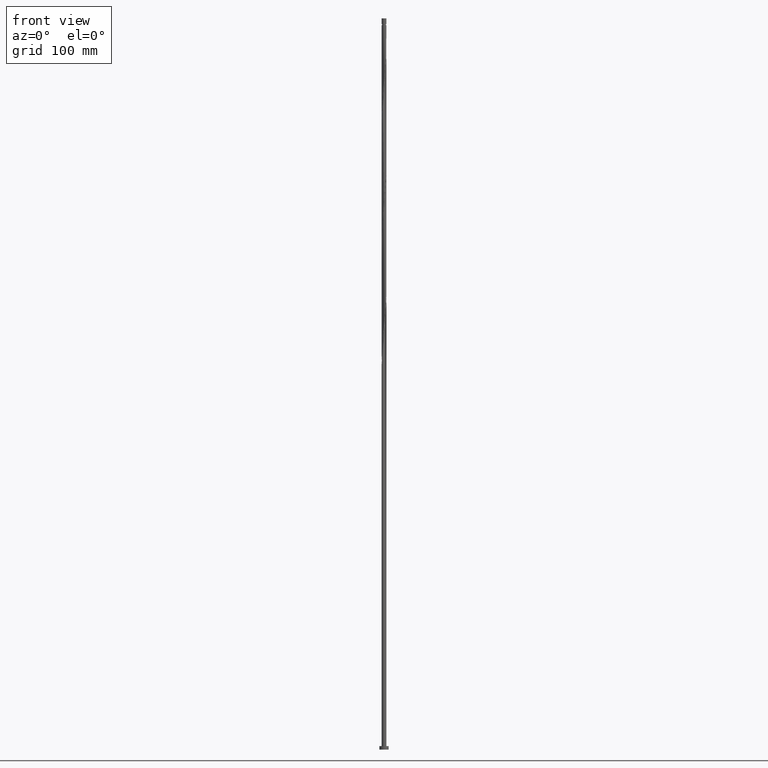
[diagram: clean part render]
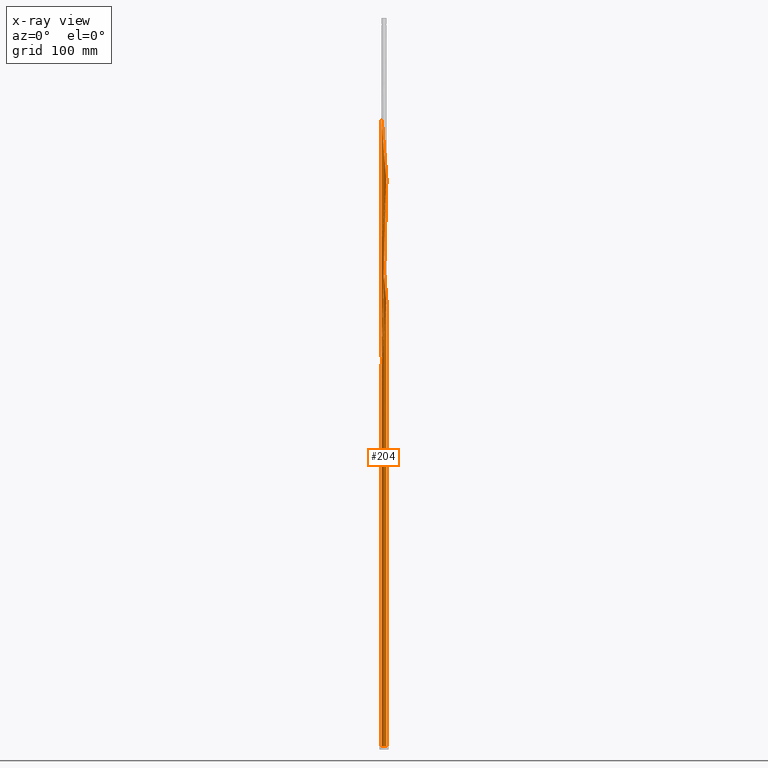
[diagram: x-ray — body ghosted, one internal face saturated and labeled with its STEP entity id]
A machine part, front view, then the same camera in x-ray: the body is ghosted and one INTERNAL B-rep face — a face not visible from any outside direction — is saturated and labeled: STEP entity #204.
In plain terms, the highlighted cylindrical surface (bore or boss wall) has radius 2 mm, axis along (-0, -0, -1).
Its self-contained STEP definition (entity closure, byte-faithful):
#6 = CARTESIAN_POINT ( 'NONE',  ( -1.723938978256571275, 1.030718489495153989, 428.0868770351694366 ) ) ;
#8 = CARTESIAN_POINT ( 'NONE',  ( 0.000000000000000000, 0.000000000000000000, 630.0000000000000000 ) ) ;
#14 = CARTESIAN_POINT ( 'NONE',  ( -1.370189186785119473, 1.456908230609307742, 528.4545240939930864 ) ) ;
#16 = CYLINDRICAL_SURFACE ( 'NONE', #1352, 2.000000000000000000 ) ;
#25 = DIRECTION ( 'NONE',  ( 0.000000000000000000, -0.000000000000000000, -1.000000000000000000 ) ) ;
#35 = DIRECTION ( 'NONE',  ( 0.000000000000000000, 0.000000000000000000, 1.000000000000000000 ) ) ;
#48 = CARTESIAN_POINT ( 'NONE',  ( -1.803959322414344868, 0.8635570410079396186, 534.6309946822282200 ) ) ;
#85 = CARTESIAN_POINT ( 'NONE',  ( 0.03106929915922246321, -1.999758660101204066, 358.6015829175225349 ) ) ;
#87 = CARTESIAN_POINT ( 'NONE',  ( -1.776261765769619805, 0.9191812331988676865, 330.8074652704636378 ) ) ;
#91 = CARTESIAN_POINT ( 'NONE',  ( -1.931921676749613015, 0.5173766856990898999, 327.7192299763459573 ) ) ;
#94 = CARTESIAN_POINT ( 'NONE',  ( 1.185386647468093635, 1.621482254403000089, 400.2927593881106532 ) ) ;
#101 = CARTESIAN_POINT ( 'NONE',  ( -0.3979949748426540035, 1.960000000000001297, 414.1898182116401017 ) ) ;
#108 = CARTESIAN_POINT ( 'NONE',  ( 1.691087081144169835, 1.083776125095387455, 394.1162887998754059 ) ) ;
#116 = CARTESIAN_POINT ( 'NONE',  ( 1.185386647468093635, 1.621482254403000089, 505.2927593881105963 ) ) ;
#120 = CARTESIAN_POINT ( 'NONE',  ( -1.861436450395071995, 0.7545863413023488064, 332.3515829175224781 ) ) ;
#123 = CARTESIAN_POINT ( 'NONE',  ( -2.000000000000002220, -4.855091616077246835E-16, 332.0916094369459870 ) ) ;
#128 = CARTESIAN_POINT ( 'NONE',  ( -1.776261765769622469, -0.9191812331988689078, 445.0721711528166793 ) ) ;
#140 = CARTESIAN_POINT ( 'NONE',  ( -1.235186757896836962, 1.583874956698217984, 421.9104064469341324 ) ) ;
#149 = CARTESIAN_POINT ( 'NONE',  ( 1.979863686927107347, -0.3383577788774545514, 486.7633476234047407 ) ) ;
#156 = CIRCLE ( 'NONE', #1319, 2.000000000000000000 ) ;
#159 = CARTESIAN_POINT ( 'NONE',  ( 1.988361328941638417, 0.2154512138964417012, 491.3957005645812046 ) ) ;
#167 =( BOUNDED_CURVE ( )  B_SPLINE_CURVE ( 2, ( #1535, #572, #736, #1518, #2031, #120, #87, #1229, #2021, #1387, #1055, #1361, #1696, #1189, #1024, #744, #238, #757, #589, #729, #413 ),
 .UNSPECIFIED., .F., .T. ) 
 B_SPLINE_CURVE_WITH_KNOTS ( ( 3, 2, 2, 2, 2, 2, 2, 2, 2, 2, 3 ),
 ( 0.9295293573162904943, 0.9338235294117647189, 0.9411764705882352811, 0.9485294117647058432, 0.9558823529411765163, 0.9632352941176470784, 0.9705882352941176405, 0.9779411764705882026, 0.9852941176470588758, 0.9926470588235294379, 1.000000000000000000 ),
 .UNSPECIFIED. ) 
 CURVE ( )  GEOMETRIC_REPRESENTATION_ITEM ( )  RATIONAL_B_SPLINE_CURVE ( ( 0.9072066346054001862, 0.9068261157891672752, 0.9090909090910387347, 0.9052128875410696551, 0.9090909090910387347, 0.9052128875410696551, 0.9090909090910387347, 0.9052128875410696551, 0.9090909090910387347, 0.9052128875410696551, 0.9090909090910387347, 0.9052128875410696551, 0.9090909090910387347, 0.9052128875410696551, 0.9090909090910387347, 0.9052128875410696551, 0.9090909090910387347, 0.9052128875410696551, 0.9090909090910387347, 0.9052128875410696551, 0.9090909090910387347 ) ) 
 REPRESENTATION_ITEM ( '' )  );
#178 = CARTESIAN_POINT ( 'NONE',  ( 0.000000000000000000, 0.000000000000000000, 3.000000000000000000 ) ) ;
#204 = ADVANCED_FACE ( 'NONE', ( #1298 ), #16, .T. ) ;
#236 = CARTESIAN_POINT ( 'NONE',  ( 1.979863686927107347, -0.3383577788774545514, 381.7633476234047407 ) ) ;
#237 = ORIENTED_EDGE ( 'NONE', *, *, #1810, .F. ) ;
#238 = CARTESIAN_POINT ( 'NONE',  ( -0.3369144042435588959, 1.971417937478810334, 315.3662887998754059 ) ) ;
#246 = CARTESIAN_POINT ( 'NONE',  ( 1.968396833874723084, 0.3997000246828213976, 387.9398182116400449 ) ) ;
#253 = DIRECTION ( 'NONE',  ( -0.000000000000000000, -0.000000000000000000, -1.000000000000000000 ) ) ;
#262 = CARTESIAN_POINT ( 'NONE',  ( -1.463149769580297743, -1.376059212794494613, 344.7045240939931432 ) ) ;
#273 = CARTESIAN_POINT ( 'NONE',  ( 1.370189186785119695, -1.456908230609307520, 370.9545240939930295 ) ) ;
#277 = ORIENTED_EDGE ( 'NONE', *, *, #1840, .T. ) ;
#288 = CARTESIAN_POINT ( 'NONE',  ( 1.691087081144169835, 1.083776125095387455, 499.1162887998752922 ) ) ;
#297 = CARTESIAN_POINT ( 'NONE',  ( 0.03106929915922246321, -1.999758660101204066, 463.6015829175224781 ) ) ;
#299 = ORIENTED_EDGE ( 'NONE', *, *, #1124, .F. ) ;
#308 = CARTESIAN_POINT ( 'NONE',  ( 1.803959322414344868, -0.8635570410079397297, 482.1309946822282200 ) ) ;
#323 = CARTESIAN_POINT ( 'NONE',  ( 1.931921676749613015, -0.5173766856990891227, 485.2192299763460142 ) ) ;
#336 = CARTESIAN_POINT ( 'NONE',  ( -1.463149769580297743, -1.376059212794494613, 449.7045240939930864 ) ) ;
#352 = DIRECTION ( 'NONE',  ( 1.000000000000000000, 0.000000000000000000, 0.000000000000000000 ) ) ;
#372 = CARTESIAN_POINT ( 'NONE',  ( -1.723938978256571275, 1.030718489495153989, 533.0868770351694366 ) ) ;
#388 =( BOUNDED_CURVE ( )  B_SPLINE_CURVE ( 2, ( #427, #569, #556, #1505, #1177, #2025, #587, #1042, #1846, #262, #1861, #1022, #1531, #886, #1702, #734, #1673, #1366, #85, #1339, #1053, #1202, #710, #1827, #1375, #578, #273, #1852, #1693, #893, #876, #1211, #1686, #236, #437, #866, #716, #246, #1060, #2019, #1349, #108, #1196, #1996, #740, #94, #903, #1185, #408, #1032, #727, #1358, #2007, #1516, #101, #1713, #783, #792, #944, #140, #1562, #1888, #1068, #6, #1744, #915, #1898, #645, #1078, #469, #1542, #1756, #934, #1733, #128, #1911, #1573, #336, #1405, #1425, #1872, #1394, #1554, #1087, #1724, #624, #297, #1385, #765, #1265, #775, #2067, #2046, #2038, #924, #602, #488, #634, #308, #1244, #323, #149, #1224, #1417, #159, #1111, #1254, #2056, #445, #288, #957, #480, #1100, #116, #613, #752, #1234, #1881, #455, #1309, #1461, #685, #1296, #801, #1133, #1162, #1793, #1785, #14, #653, #1808, #372, #48, #1451, #502, #1156, #1775, #998, #1121 ),
 .UNSPECIFIED., .F., .T. ) 
 B_SPLINE_CURVE_WITH_KNOTS ( ( 3, 2, 2, 2, 2, 2, 2, 2, 2, 2, 2, 2, 2, 2, 2, 2, 2, 2, 2, 2, 2, 2, 2, 2, 2, 2, 2, 2, 2, 2, 2, 2, 2, 2, 2, 2, 2, 2, 2, 2, 2, 2, 2, 2, 2, 2, 2, 2, 2, 2, 2, 2, 2, 2, 2, 2, 2, 2, 2, 2, 2, 2, 2, 2, 2, 2, 2, 2, 2, 3 ),
 ( 0.05452935731629067473, 0.05882352941176471894, 0.06617647058823528106, 0.07352941176470584317, 0.08088235294117651630, 0.08823529411764707842, 0.09558823529411764053, 0.1029411764705882026, 0.1102941176470588758, 0.1176470588235294379, 0.1250000000000000000, 0.1323529411764705621, 0.1397058823529411242, 0.1470588235294117974, 0.1544117647058823595, 0.1617647058823529216, 0.1691176470588234837, 0.1764705882352941568, 0.1838235294117647189, 0.1911764705882352811, 0.1985294117647058432, 0.2058823529411765163, 0.2132352941176470784, 0.2205882352941176405, 0.2279411764705882026, 0.2352941176470588758, 0.2426470588235294379, 0.2500000000000000000, 0.2573529411764705621, 0.2647058823529411242, 0.2720588235294117974, 0.2794117647058823595, 0.2867647058823529216, 0.2941176470588234837, 0.3014705882352941568, 0.3088235294117647189, 0.3161764705882352811, 0.3235294117647058432, 0.3308823529411765163, 0.3382352941176470784, 0.3455882352941176405, 0.3529411764705882026, 0.3602941176470588758, 0.3676470588235294379, 0.3750000000000000000, 0.3823529411764705621, 0.3897058823529411242, 0.3970588235294117974, 0.4044117647058823595, 0.4117647058823529216, 0.4191176470588234837, 0.4264705882352941568, 0.4338235294117647189, 0.4411764705882352811, 0.4485294117647058432, 0.4558823529411765163, 0.4632352941176470784, 0.4705882352941176405, 0.4779411764705882026, 0.4852941176470588758, 0.4926470588235294379, 0.5000000000000000000, 0.5073529411764705621, 0.5147058823529411242, 0.5220588235294116863, 0.5294117647058823595, 0.5367647058823529216, 0.5441176470588235947, 0.5514705882352941568, 0.5545293573162904943 ),
 .UNSPECIFIED. ) 
 CURVE ( )  GEOMETRIC_REPRESENTATION_ITEM ( )  RATIONAL_B_SPLINE_CURVE ( ( 0.9072066346054061814, 0.9068261157891732704, 0.9090909090910446189, 0.9052128875410754283, 0.9090909090910446189, 0.9052128875410754283, 0.9090909090910446189, 0.9052128875410754283, 0.9090909090910446189, 0.9052128875410754283, 0.9090909090910446189, 0.9052128875410754283, 0.9090909090910446189, 0.9052128875410754283, 0.9090909090910446189, 0.9052128875410754283, 0.9090909090910446189, 0.9052128875410754283, 0.9090909090910446189, 0.9052128875410754283, 0.9090909090910446189, 0.9052128875410754283, 0.9090909090910446189, 0.9052128875410754283, 0.9090909090910446189, 0.9052128875410754283, 0.9090909090910446189, 0.9052128875410754283, 0.9090909090910446189, 0.9052128875410754283, 0.9090909090910446189, 0.9052128875410754283, 0.9090909090910446189, 0.9052128875410754283, 0.9090909090910446189, 0.9052128875410754283, 0.9090909090910446189, 0.9052128875410754283, 0.9090909090910446189, 0.9052128875410754283, 0.9090909090910446189, 0.9052128875410754283, 0.9090909090910446189, 0.9052128875410754283, 0.9090909090910446189, 0.9052128875410754283, 0.9090909090910446189, 0.9052128875410754283, 0.9090909090910446189, 0.9052128875410754283, 0.9090909090910446189, 0.9052128875410754283, 0.9090909090910446189, 0.9052128875410754283, 0.9090909090910446189, 0.9052128875410754283, 0.9090909090910446189, 0.9052128875410754283, 0.9090909090910446189, 0.9052128875410754283, 0.9090909090910446189, 0.9052128875410754283, 0.9090909090910446189, 0.9052128875410754283, 0.9090909090910446189, 0.9052128875410754283, 0.9090909090910446189, 0.9052128875410754283, 0.9090909090910446189, 0.9052128875410754283, 0.9090909090910446189, 0.9052128875410754283, 0.9090909090910446189, 0.9052128875410754283, 0.9090909090910446189, 0.9052128875410754283, 0.9090909090910446189, 0.9052128875410754283, 0.9090909090910446189, 0.9052128875410754283, 0.9090909090910446189, 0.9052128875410754283, 0.9090909090910446189, 0.9052128875410754283, 0.9090909090910446189, 0.9052128875410754283, 0.9090909090910446189, 0.9052128875410754283, 0.9090909090910446189, 0.9052128875410754283, 0.9090909090910446189, 0.9052128875410754283, 0.9090909090910446189, 0.9052128875410754283, 0.9090909090910446189, 0.9052128875410754283, 0.9090909090910446189, 0.9052128875410754283, 0.9090909090910446189, 0.9052128875410754283, 0.9090909090910446189, 0.9052128875410754283, 0.9090909090910446189, 0.9052128875410754283, 0.9090909090910446189, 0.9052128875410754283, 0.9090909090910446189, 0.9052128875410754283, 0.9090909090910446189, 0.9052128875410754283, 0.9090909090910446189, 0.9052128875410754283, 0.9090909090910446189, 0.9052128875410754283, 0.9090909090910446189, 0.9052128875410754283, 0.9090909090910446189, 0.9052128875410754283, 0.9090909090910446189, 0.9052128875410754283, 0.9090909090910446189, 0.9052128875410754283, 0.9090909090910446189, 0.9052128875410754283, 0.9090909090910446189, 0.9052128875410754283, 0.9090909090910446189, 0.9052128875410754283, 0.9090909090910446189, 0.9052128875410754283, 0.9090909090910446189, 0.9052128875410754283, 0.9090909090910446189, 0.9052128875410754283, 0.9090909090910446189, 0.9052128875410754283, 0.9090909090910446189, 0.9074776808429468877, 0.9072066346054060704 ) ) 
 REPRESENTATION_ITEM ( '' )  );
#398 = LINE ( 'NONE', #1982, #1112 ) ;
#399 = ORIENTED_EDGE ( 'NONE', *, *, #1717, .T. ) ;
#408 = CARTESIAN_POINT ( 'NONE',  ( 0.6934248916941171403, 1.875942941450782220, 404.9251123292872308 ) ) ;
#413 = CARTESIAN_POINT ( 'NONE',  ( 0.3979949748426547251, 1.959999999999998632, 309.1898182116400449 ) ) ;
#427 = CARTESIAN_POINT ( 'NONE',  ( -2.000000000000002220, -4.855091616077246835E-16, 332.0916094369459870 ) ) ;
#437 = CARTESIAN_POINT ( 'NONE',  ( 1.994094755467831215, -0.1535776878836971893, 383.3074652704636378 ) ) ;
#445 = CARTESIAN_POINT ( 'NONE',  ( 1.776261765769622469, 0.9191812331988686857, 497.5721711528166793 ) ) ;
#455 = CARTESIAN_POINT ( 'NONE',  ( 0.3369144042435598396, 1.971417937478813442, 513.0133476234047976 ) ) ;
#469 = CARTESIAN_POINT ( 'NONE',  ( -2.008325824008553973, -0.03120240311006139411, 437.3515829175223644 ) ) ;
#480 = CARTESIAN_POINT ( 'NONE',  ( 1.463149769580297743, 1.376059212794494169, 502.2045240939929727 ) ) ;
#488 = CARTESIAN_POINT ( 'NONE',  ( 1.614565296964986629, -1.180329997007775189, 479.0427593881107100 ) ) ;
#502 = CARTESIAN_POINT ( 'NONE',  ( -1.931921676749613015, 0.5173766856990898999, 537.7192299763459005 ) ) ;
#508 = DIRECTION ( 'NONE',  ( 1.000000000000000000, 0.000000000000000000, 0.000000000000000000 ) ) ;
#510 = CARTESIAN_POINT ( 'NONE',  ( 0.000000000000000000, 0.000000000000000000, 3.000000000000000000 ) ) ;
#516 = EDGE_CURVE ( 'NONE', #617, #1946, #1039, .T. ) ;
#520 = CARTESIAN_POINT ( 'NONE',  ( -2.000000000000002220, -4.855091616077245849E-16, 332.0916094369459870 ) ) ;
#541 = CARTESIAN_POINT ( 'NONE',  ( -1.994094755467830771, 0.1535776878836965231, 330.8074652704636378 ) ) ;
#542 = DIRECTION ( 'NONE',  ( -1.000000000000000000, 0.000000000000000000, 0.000000000000000000 ) ) ;
#549 = VERTEX_POINT ( 'NONE', #723 ) ;
#556 = CARTESIAN_POINT ( 'NONE',  ( -1.988361328941638417, -0.2154512138964415069, 333.8957005645813183 ) ) ;
#564 = CARTESIAN_POINT ( 'NONE',  ( -1.079152927210080604, 1.683873201786264096, 315.3662887998754627 ) ) ;
#569 = CARTESIAN_POINT ( 'NONE',  ( -2.000000000000001776, -0.1080399673585389075, 332.9955286689587979 ) ) ;
#572 = CARTESIAN_POINT ( 'NONE',  ( -1.999999999999999112, 0.1080399673585345083, 337.8841077543214055 ) ) ;
#575 = CARTESIAN_POINT ( 'NONE',  ( -1.370189186785119473, 1.456908230609307742, 318.4545240939929727 ) ) ;
#578 = CARTESIAN_POINT ( 'NONE',  ( 1.235186757896836518, -1.583874956698217984, 369.4104064469341893 ) ) ;
#587 = CARTESIAN_POINT ( 'NONE',  ( -1.776261765769622469, -0.9191812331988689078, 340.0721711528164519 ) ) ;
#589 = CARTESIAN_POINT ( 'NONE',  ( 0.03106929915922274771, 1.999758660101201402, 312.2780535057577822 ) ) ;
#602 = CARTESIAN_POINT ( 'NONE',  ( 1.505191615673401762, -1.329941504520396833, 477.4986417410519266 ) ) ;
#613 = CARTESIAN_POINT ( 'NONE',  ( 1.026321626129519160, 1.716584958497210600, 506.8368770351694366 ) ) ;
#617 = VERTEX_POINT ( 'NONE', #1338 ) ;
#624 = CARTESIAN_POINT ( 'NONE',  ( -0.1542356298898312772, -2.002637654647482890, 462.0574652704634673 ) ) ;
#634 = CARTESIAN_POINT ( 'NONE',  ( 1.723938978256571275, -1.030718489495153545, 480.5868770351694934 ) ) ;
#645 = CARTESIAN_POINT ( 'NONE',  ( -1.979863686927107347, 0.3383577788774547179, 434.2633476234047407 ) ) ;
#653 = CARTESIAN_POINT ( 'NONE',  ( -1.505191615673401984, 1.329941504520396389, 529.9986417410517561 ) ) ;
#685 = CARTESIAN_POINT ( 'NONE',  ( -0.2163742282082761481, 1.996879665554926353, 517.6457005645811478 ) ) ;
#710 = CARTESIAN_POINT ( 'NONE',  ( 0.7513674090001782879, -1.853495890659693224, 364.7780535057577254 ) ) ;
#714 = CARTESIAN_POINT ( 'NONE',  ( -1.979863686927107347, 0.3383577788774547179, 329.2633476234047407 ) ) ;
#716 = CARTESIAN_POINT ( 'NONE',  ( 1.988361328941638417, 0.2154512138964417012, 386.3957005645812615 ) ) ;
#723 = CARTESIAN_POINT ( 'NONE',  ( 0.3979949748426547251, 1.959999999999998632, 309.1898182116401017 ) ) ;
#727 = CARTESIAN_POINT ( 'NONE',  ( 0.3369144042435598396, 1.971417937478813442, 408.0133476234047976 ) ) ;
#729 = CARTESIAN_POINT ( 'NONE',  ( 0.2163742282082760371, 1.996879665554923244, 310.7339358586989420 ) ) ;
#734 = CARTESIAN_POINT ( 'NONE',  ( -0.5195931785972888184, -1.940198220310143329, 353.9692299763459573 ) ) ;
#736 = CARTESIAN_POINT ( 'NONE',  ( -1.988361328941635753, 0.2154512138964417567, 336.9839358586989420 ) ) ;
#740 = CARTESIAN_POINT ( 'NONE',  ( 1.324268208524196799, 1.498770733598746796, 398.7486417410519266 ) ) ;
#744 = CARTESIAN_POINT ( 'NONE',  ( -0.5195931785972874861, 1.940198220310141108, 316.9104064469342461 ) ) ;
#750 = AXIS2_PLACEMENT_3D ( 'NONE', #510, #35, #352 ) ;
#752 = CARTESIAN_POINT ( 'NONE',  ( 0.8672566047909446851, 1.811687662591420445, 508.3809946822282200 ) ) ;
#757 = CARTESIAN_POINT ( 'NONE',  ( -0.1542356298898303057, 2.002637654647479781, 313.8221711528165656 ) ) ;
#760 = EDGE_CURVE ( 'NONE', #1890, #925, #939, .T. ) ;
#765 = CARTESIAN_POINT ( 'NONE',  ( 0.3979949748426543366, -1.960000000000001297, 466.6898182116401017 ) ) ;
#775 = CARTESIAN_POINT ( 'NONE',  ( 0.7513674090001782879, -1.853495890659693224, 469.7780535057577822 ) ) ;
#783 = CARTESIAN_POINT ( 'NONE',  ( -0.7513674090001787320, 1.853495890659692780, 417.2780535057577254 ) ) ;
#792 = CARTESIAN_POINT ( 'NONE',  ( -0.9231190965233242451, 1.783871446874309763, 418.8221711528165088 ) ) ;
#801 = CARTESIAN_POINT ( 'NONE',  ( -0.5796157214770327748, 1.923120334445076018, 520.7339358586987146 ) ) ;
#810 = CARTESIAN_POINT ( 'NONE',  ( -2.000000000000000000, 0.000000000000000000, 3.000000000000000000 ) ) ;
#866 = CARTESIAN_POINT ( 'NONE',  ( 2.008325824008554417, 0.03120240311006209147, 384.8515829175223075 ) ) ;
#872 = EDGE_CURVE ( 'NONE', #1592, #1246, #1443, .T. ) ;
#873 = CARTESIAN_POINT ( 'NONE',  ( -1.723938978256571275, 1.030718489495153989, 323.0868770351694934 ) ) ;
#876 = CARTESIAN_POINT ( 'NONE',  ( 1.803959322414344868, -0.8635570410079397297, 377.1309946822283337 ) ) ;
#886 = CARTESIAN_POINT ( 'NONE',  ( -0.8672566047909443521, -1.811687662591420445, 350.8809946822282768 ) ) ;
#893 = CARTESIAN_POINT ( 'NONE',  ( 1.723938978256571275, -1.030718489495153545, 375.5868770351694366 ) ) ;
#903 = CARTESIAN_POINT ( 'NONE',  ( 1.026321626129519160, 1.716584958497210600, 401.8368770351694934 ) ) ;
#915 = CARTESIAN_POINT ( 'NONE',  ( -1.883979666572118461, 0.6963955925207249154, 431.1751123292871171 ) ) ;
#924 = CARTESIAN_POINT ( 'NONE',  ( 1.370189186785119695, -1.456908230609307520, 475.9545240939931432 ) ) ;
#925 = VERTEX_POINT ( 'NONE', #1458 ) ;
#934 = CARTESIAN_POINT ( 'NONE',  ( -1.914916642134899094, -0.5771431829925853796, 441.9839358586989420 ) ) ;
#939 = LINE ( 'NONE', #1116, #1537 ) ;
#944 = CARTESIAN_POINT ( 'NONE',  ( -1.079152927210080604, 1.683873201786264096, 420.3662887998753490 ) ) ;
#957 = CARTESIAN_POINT ( 'NONE',  ( 1.577118425362233678, 1.229917668944941811, 500.6604064469341893 ) ) ;
#958 = DIRECTION ( 'NONE',  ( -0.000000000000000000, -0.000000000000000000, -1.000000000000000000 ) ) ;
#998 = CARTESIAN_POINT ( 'NONE',  ( -2.000000000000002665, 0.07690237577535982694, 541.4482036848863800 ) ) ;
#1014 = ORIENTED_EDGE ( 'NONE', *, *, #760, .F. ) ;
#1022 = CARTESIAN_POINT ( 'NONE',  ( -1.185386647468094079, -1.621482254402999645, 347.7927593881106532 ) ) ;
#1024 = CARTESIAN_POINT ( 'NONE',  ( -0.6934248916941150309, 1.875942941450779777, 318.4545240939930864 ) ) ;
#1032 = CARTESIAN_POINT ( 'NONE',  ( 0.5195931785972880412, 1.940198220310143773, 406.4692299763459573 ) ) ;
#1039 =( BOUNDED_CURVE ( )  B_SPLINE_CURVE ( 2, ( #1991, #1327, #1354, #1494, #564, #1641, #575, #1671, #1969, #873, #1536, #1876, #91, #714, #541, #1807, #123 ),
 .UNSPECIFIED., .F., .T. ) 
 B_SPLINE_CURVE_WITH_KNOTS ( ( 3, 2, 2, 2, 2, 2, 2, 2, 3 ),
 ( 0.000000000000000000, 0.007352941176470562980, 0.01470588235294112596, 0.02205882352941179736, 0.02941176470588235600, 0.03676470588235292158, 0.04411764705882348370, 0.05147058823529415683, 0.05452935731629067473 ),
 .UNSPECIFIED. ) 
 CURVE ( )  GEOMETRIC_REPRESENTATION_ITEM ( )  RATIONAL_B_SPLINE_CURVE ( ( 0.9090909090910446189, 0.9052128875410754283, 0.9090909090910446189, 0.9052128875410754283, 0.9090909090910446189, 0.9052128875410754283, 0.9090909090910446189, 0.9052128875410754283, 0.9090909090910446189, 0.9052128875410754283, 0.9090909090910446189, 0.9052128875410754283, 0.9090909090910446189, 0.9052128875410754283, 0.9090909090910446189, 0.9074776808429468877, 0.9072066346054061814 ) ) 
 REPRESENTATION_ITEM ( '' )  );
#1042 = CARTESIAN_POINT ( 'NONE',  ( -1.691087081144169613, -1.083776125095388343, 341.6162887998754059 ) ) ;
#1053 = CARTESIAN_POINT ( 'NONE',  ( 0.3979949748426543366, -1.960000000000001297, 361.6898182116401586 ) ) ;
#1055 = CARTESIAN_POINT ( 'NONE',  ( -1.324268208524193913, 1.498770733598745020, 324.6309946822282768 ) ) ;
#1060 = CARTESIAN_POINT ( 'NONE',  ( 1.914916642134899094, 0.5771431829925848245, 389.4839358586988851 ) ) ;
#1068 = CARTESIAN_POINT ( 'NONE',  ( -1.614565296964986629, 1.180329997007775189, 426.5427593881107100 ) ) ;
#1078 = CARTESIAN_POINT ( 'NONE',  ( -1.994094755467830771, 0.1535776878836965231, 435.8074652704635810 ) ) ;
#1087 = CARTESIAN_POINT ( 'NONE',  ( -0.5195931785972888184, -1.940198220310143329, 458.9692299763459005 ) ) ;
#1100 = CARTESIAN_POINT ( 'NONE',  ( 1.324268208524196799, 1.498770733598746796, 503.7486417410518129 ) ) ;
#1111 = CARTESIAN_POINT ( 'NONE',  ( 1.968396833874723084, 0.3997000246828213976, 492.9398182116401017 ) ) ;
#1112 = VECTOR ( 'NONE', #253, 1000.000000000000000 ) ;
#1116 = CARTESIAN_POINT ( 'NONE',  ( -2.000000000000000000, 0.000000000000000000, 630.0000000000000000 ) ) ;
#1121 = CARTESIAN_POINT ( 'NONE',  ( -2.000000000000002665, 6.722434545337726766E-16, 542.0916094369461007 ) ) ;
#1124 = EDGE_CURVE ( 'NONE', #925, #549, #167, .T. ) ;
#1133 = CARTESIAN_POINT ( 'NONE',  ( -0.7513674090001787320, 1.853495890659692780, 522.2780535057577254 ) ) ;
#1156 = CARTESIAN_POINT ( 'NONE',  ( -1.979863686927107347, 0.3383577788774547179, 539.2633476234046839 ) ) ;
#1162 = CARTESIAN_POINT ( 'NONE',  ( -0.9231190965233242451, 1.783871446874309763, 523.8221711528166225 ) ) ;
#1177 = CARTESIAN_POINT ( 'NONE',  ( -1.914916642134899094, -0.5771431829925853796, 336.9839358586989420 ) ) ;
#1185 = CARTESIAN_POINT ( 'NONE',  ( 0.8672566047909446851, 1.811687662591420445, 403.3809946822283337 ) ) ;
#1189 = CARTESIAN_POINT ( 'NONE',  ( -0.8672566047909432418, 1.811687662591418446, 319.9986417410518698 ) ) ;
#1196 = CARTESIAN_POINT ( 'NONE',  ( 1.577118425362233678, 1.229917668944941811, 395.6604064469341893 ) ) ;
#1202 = CARTESIAN_POINT ( 'NONE',  ( 0.5796157214770329968, -1.923120334445076018, 363.2339358586988283 ) ) ;
#1211 = CARTESIAN_POINT ( 'NONE',  ( 1.883979666572118461, -0.6963955925207253594, 378.6751123292870602 ) ) ;
#1224 = CARTESIAN_POINT ( 'NONE',  ( 1.994094755467831215, -0.1535776878836971893, 488.3074652704636378 ) ) ;
#1229 = CARTESIAN_POINT ( 'NONE',  ( -1.691087081144167392, 1.083776125095387011, 329.2633476234047976 ) ) ;
#1234 = CARTESIAN_POINT ( 'NONE',  ( 0.6934248916941171403, 1.875942941450782220, 509.9251123292871739 ) ) ;
#1244 = CARTESIAN_POINT ( 'NONE',  ( 1.883979666572118461, -0.6963955925207253594, 483.6751123292870602 ) ) ;
#1246 = VERTEX_POINT ( 'NONE', #1677 ) ;
#1254 = CARTESIAN_POINT ( 'NONE',  ( 1.914916642134899094, 0.5771431829925848245, 494.4839358586989420 ) ) ;
#1265 = CARTESIAN_POINT ( 'NONE',  ( 0.5796157214770329968, -1.923120334445076018, 468.2339358586988851 ) ) ;
#1266 = DIRECTION ( 'NONE',  ( -1.000000000000000000, 0.000000000000000000, 0.000000000000000000 ) ) ;
#1296 = CARTESIAN_POINT ( 'NONE',  ( -0.3979949748426540035, 1.960000000000001297, 519.1898182116401586 ) ) ;
#1298 = FACE_OUTER_BOUND ( 'NONE', #1497, .T. ) ;
#1309 = CARTESIAN_POINT ( 'NONE',  ( 0.1542356298898316380, 2.002637654647482446, 514.5574652704635810 ) ) ;
#1319 = AXIS2_PLACEMENT_3D ( 'NONE', #1970, #25, #542 ) ;
#1327 = CARTESIAN_POINT ( 'NONE',  ( -0.5796157214770327748, 1.923120334445076018, 310.7339358586988283 ) ) ;
#1338 = CARTESIAN_POINT ( 'NONE',  ( -0.3979949748426540035, 1.960000000000001297, 309.1898182116401017 ) ) ;
#1339 = CARTESIAN_POINT ( 'NONE',  ( 0.2163742282082763702, -1.996879665554926353, 360.1457005645811478 ) ) ;
#1349 = CARTESIAN_POINT ( 'NONE',  ( 1.776261765769622469, 0.9191812331988686857, 392.5721711528165656 ) ) ;
#1352 = AXIS2_PLACEMENT_3D ( 'NONE', #8, #958, #1266 ) ;
#1354 = CARTESIAN_POINT ( 'NONE',  ( -0.7513674090001787320, 1.853495890659692780, 312.2780535057577822 ) ) ;
#1358 = CARTESIAN_POINT ( 'NONE',  ( 0.1542356298898316380, 2.002637654647482446, 409.5574652704635241 ) ) ;
#1361 = CARTESIAN_POINT ( 'NONE',  ( -1.185386647468092303, 1.621482254402997647, 323.0868770351696071 ) ) ;
#1366 = CARTESIAN_POINT ( 'NONE',  ( -0.1542356298898312772, -2.002637654647482890, 357.0574652704635810 ) ) ;
#1375 = CARTESIAN_POINT ( 'NONE',  ( 1.079152927210081270, -1.683873201786263873, 367.8662887998754059 ) ) ;
#1385 = CARTESIAN_POINT ( 'NONE',  ( 0.2163742282082763702, -1.996879665554926353, 465.1457005645811478 ) ) ;
#1387 = CARTESIAN_POINT ( 'NONE',  ( -1.463149769580295523, 1.376059212794493281, 326.1751123292870602 ) ) ;
#1394 = CARTESIAN_POINT ( 'NONE',  ( -0.8672566047909443521, -1.811687662591420445, 455.8809946822282200 ) ) ;
#1405 = CARTESIAN_POINT ( 'NONE',  ( -1.324268208524196355, -1.498770733598747240, 451.2486417410519266 ) ) ;
#1417 = CARTESIAN_POINT ( 'NONE',  ( 2.008325824008554417, 0.03120240311006209147, 489.8515829175224781 ) ) ;
#1425 = CARTESIAN_POINT ( 'NONE',  ( -1.185386647468094079, -1.621482254402999645, 452.7927593881105963 ) ) ;
#1443 = CIRCLE ( 'NONE', #1998, 2.000000000000000000 ) ;
#1451 = CARTESIAN_POINT ( 'NONE',  ( -1.883979666572118461, 0.6963955925207249154, 536.1751123292870034 ) ) ;
#1458 = CARTESIAN_POINT ( 'NONE',  ( -2.000000000000000000, 6.573047110996929984E-16, 338.7880269863342164 ) ) ;
#1461 = CARTESIAN_POINT ( 'NONE',  ( -0.03106929915922304261, 1.999758660101204066, 516.1015829175223644 ) ) ;
#1494 = CARTESIAN_POINT ( 'NONE',  ( -0.9231190965233242451, 1.783871446874309763, 313.8221711528164519 ) ) ;
#1497 = EDGE_LOOP ( 'NONE', ( #1014, #237, #399, #1962, #277, #1904, #1547, #1725, #299 ) ) ;
#1505 = CARTESIAN_POINT ( 'NONE',  ( -1.968396833874723084, -0.3997000246828217862, 335.4398182116399880 ) ) ;
#1516 = CARTESIAN_POINT ( 'NONE',  ( -0.2163742282082761481, 1.996879665554926353, 412.6457005645812046 ) ) ;
#1518 = CARTESIAN_POINT ( 'NONE',  ( -1.968396833874720420, 0.3997000246828216752, 335.4398182116399312 ) ) ;
#1531 = CARTESIAN_POINT ( 'NONE',  ( -1.026321626129519604, -1.716584958497210156, 349.3368770351694366 ) ) ;
#1535 = CARTESIAN_POINT ( 'NONE',  ( -2.000000000000000000, 6.573047110996929984E-16, 338.7880269863342164 ) ) ;
#1536 = CARTESIAN_POINT ( 'NONE',  ( -1.803959322414344868, 0.8635570410079396186, 324.6309946822283905 ) ) ;
#1537 = VECTOR ( 'NONE', #1593, 1000.000000000000000 ) ;
#1542 = CARTESIAN_POINT ( 'NONE',  ( -1.988361328941638417, -0.2154512138964415069, 438.8957005645812615 ) ) ;
#1547 = ORIENTED_EDGE ( 'NONE', *, *, #516, .F. ) ;
#1554 = CARTESIAN_POINT ( 'NONE',  ( -0.6934248916941164742, -1.875942941450782664, 457.4251123292872308 ) ) ;
#1562 = CARTESIAN_POINT ( 'NONE',  ( -1.370189186785119473, 1.456908230609307742, 423.4545240939930864 ) ) ;
#1573 = CARTESIAN_POINT ( 'NONE',  ( -1.577118425362233678, -1.229917668944941145, 448.1604064469341893 ) ) ;
#1592 = VERTEX_POINT ( 'NONE', #810 ) ;
#1593 = DIRECTION ( 'NONE',  ( -0.000000000000000000, -0.000000000000000000, -1.000000000000000000 ) ) ;
#1641 = CARTESIAN_POINT ( 'NONE',  ( -1.235186757896836962, 1.583874956698217984, 316.9104064469343029 ) ) ;
#1648 = CIRCLE ( 'NONE', #750, 2.000000000000000000 ) ;
#1671 = CARTESIAN_POINT ( 'NONE',  ( -1.505191615673401984, 1.329941504520396389, 319.9986417410519266 ) ) ;
#1673 = CARTESIAN_POINT ( 'NONE',  ( -0.3369144042435596176, -1.971417937478813442, 355.5133476234048544 ) ) ;
#1677 = CARTESIAN_POINT ( 'NONE',  ( 2.000000000000000000, 0.000000000000000000, 3.000000000000000000 ) ) ;
#1686 = CARTESIAN_POINT ( 'NONE',  ( 1.931921676749613015, -0.5173766856990891227, 380.2192299763460710 ) ) ;
#1693 = CARTESIAN_POINT ( 'NONE',  ( 1.614565296964986629, -1.180329997007775189, 374.0427593881107100 ) ) ;
#1696 = CARTESIAN_POINT ( 'NONE',  ( -1.026321626129518050, 1.716584958497208380, 321.5427593881107100 ) ) ;
#1702 = CARTESIAN_POINT ( 'NONE',  ( -0.6934248916941164742, -1.875942941450782664, 352.4251123292871739 ) ) ;
#1713 = CARTESIAN_POINT ( 'NONE',  ( -0.5796157214770327748, 1.923120334445076018, 415.7339358586989420 ) ) ;
#1717 = EDGE_CURVE ( 'NONE', #1946, #1592, #398, .T. ) ;
#1724 = CARTESIAN_POINT ( 'NONE',  ( -0.3369144042435596176, -1.971417937478813442, 460.5133476234047407 ) ) ;
#1725 = ORIENTED_EDGE ( 'NONE', *, *, #2034, .T. ) ;
#1733 = CARTESIAN_POINT ( 'NONE',  ( -1.861436450395074660, -0.7545863413023496946, 443.5280535057576117 ) ) ;
#1744 = CARTESIAN_POINT ( 'NONE',  ( -1.803959322414344868, 0.8635570410079396186, 429.6309946822283337 ) ) ;
#1756 = CARTESIAN_POINT ( 'NONE',  ( -1.968396833874723084, -0.3997000246828217862, 440.4398182116401017 ) ) ;
#1767 = CARTESIAN_POINT ( 'NONE',  ( -2.000000000000002665, 6.722434545337726766E-16, 542.0916094369461007 ) ) ;
#1775 = CARTESIAN_POINT ( 'NONE',  ( -1.994094755467830771, 0.1535776878836965231, 540.8074652704636947 ) ) ;
#1785 = CARTESIAN_POINT ( 'NONE',  ( -1.235186757896836962, 1.583874956698217984, 526.9104064469340756 ) ) ;
#1793 = CARTESIAN_POINT ( 'NONE',  ( -1.079152927210080604, 1.683873201786264096, 525.3662887998752922 ) ) ;
#1807 = CARTESIAN_POINT ( 'NONE',  ( -2.000000000000002665, 0.07690237577535530278, 331.4482036848864368 ) ) ;
#1808 = CARTESIAN_POINT ( 'NONE',  ( -1.614565296964986629, 1.180329997007775189, 531.5427593881105395 ) ) ;
#1810 = EDGE_CURVE ( 'NONE', #1946, #1890, #388, .T. ) ;
#1827 = CARTESIAN_POINT ( 'NONE',  ( 0.9231190965233242451, -1.783871446874309763, 366.3221711528164519 ) ) ;
#1840 = EDGE_CURVE ( 'NONE', #1246, #1592, #1648, .T. ) ;
#1846 = CARTESIAN_POINT ( 'NONE',  ( -1.577118425362233678, -1.229917668944941145, 343.1604064469341893 ) ) ;
#1852 = CARTESIAN_POINT ( 'NONE',  ( 1.505191615673401762, -1.329941504520396833, 372.4986417410519266 ) ) ;
#1861 = CARTESIAN_POINT ( 'NONE',  ( -1.324268208524196355, -1.498770733598747240, 346.2486417410519834 ) ) ;
#1872 = CARTESIAN_POINT ( 'NONE',  ( -1.026321626129519604, -1.716584958497210156, 454.3368770351695503 ) ) ;
#1876 = CARTESIAN_POINT ( 'NONE',  ( -1.883979666572118461, 0.6963955925207249154, 326.1751123292871171 ) ) ;
#1881 = CARTESIAN_POINT ( 'NONE',  ( 0.5195931785972880412, 1.940198220310143773, 511.4692299763458436 ) ) ;
#1888 = CARTESIAN_POINT ( 'NONE',  ( -1.505191615673401984, 1.329941504520396389, 424.9986417410518698 ) ) ;
#1890 = VERTEX_POINT ( 'NONE', #1767 ) ;
#1898 = CARTESIAN_POINT ( 'NONE',  ( -1.931921676749613015, 0.5173766856990898999, 432.7192299763460142 ) ) ;
#1904 = ORIENTED_EDGE ( 'NONE', *, *, #1717, .F. ) ;
#1911 = CARTESIAN_POINT ( 'NONE',  ( -1.691087081144169613, -1.083776125095388343, 446.6162887998754059 ) ) ;
#1946 = VERTEX_POINT ( 'NONE', #520 ) ;
#1962 = ORIENTED_EDGE ( 'NONE', *, *, #872, .T. ) ;
#1969 = CARTESIAN_POINT ( 'NONE',  ( -1.614565296964986629, 1.180329997007775189, 321.5427593881107100 ) ) ;
#1970 = CARTESIAN_POINT ( 'NONE',  ( 0.000000000000000000, 0.000000000000000000, 309.1898182116401017 ) ) ;
#1982 = CARTESIAN_POINT ( 'NONE',  ( -2.000000000000000000, 0.000000000000000000, 630.0000000000000000 ) ) ;
#1991 = CARTESIAN_POINT ( 'NONE',  ( -0.3979949748426540035, 1.960000000000001297, 309.1898182116401017 ) ) ;
#1996 = CARTESIAN_POINT ( 'NONE',  ( 1.463149769580297743, 1.376059212794494169, 397.2045240939930864 ) ) ;
#1998 = AXIS2_PLACEMENT_3D ( 'NONE', #178, #2061, #508 ) ;
#2007 = CARTESIAN_POINT ( 'NONE',  ( -0.03106929915922304261, 1.999758660101204066, 411.1015829175224212 ) ) ;
#2019 = CARTESIAN_POINT ( 'NONE',  ( 1.861436450395074660, 0.7545863413023496946, 391.0280535057578390 ) ) ;
#2021 = CARTESIAN_POINT ( 'NONE',  ( -1.577118425362231457, 1.229917668944940035, 327.7192299763460710 ) ) ;
#2025 = CARTESIAN_POINT ( 'NONE',  ( -1.861436450395074660, -0.7545863413023496946, 338.5280535057577822 ) ) ;
#2031 = CARTESIAN_POINT ( 'NONE',  ( -1.914916642134896207, 0.5771431829925849355, 333.8957005645813751 ) ) ;
#2034 = EDGE_CURVE ( 'NONE', #617, #549, #156, .T. ) ;
#2038 = CARTESIAN_POINT ( 'NONE',  ( 1.235186757896836518, -1.583874956698217984, 474.4104064469341893 ) ) ;
#2046 = CARTESIAN_POINT ( 'NONE',  ( 1.079152927210081270, -1.683873201786263873, 472.8662887998753490 ) ) ;
#2056 = CARTESIAN_POINT ( 'NONE',  ( 1.861436450395074660, 0.7545863413023496946, 496.0280535057576117 ) ) ;
#2061 = DIRECTION ( 'NONE',  ( 0.000000000000000000, 0.000000000000000000, 1.000000000000000000 ) ) ;
#2067 = CARTESIAN_POINT ( 'NONE',  ( 0.9231190965233242451, -1.783871446874309763, 471.3221711528165088 ) ) ;